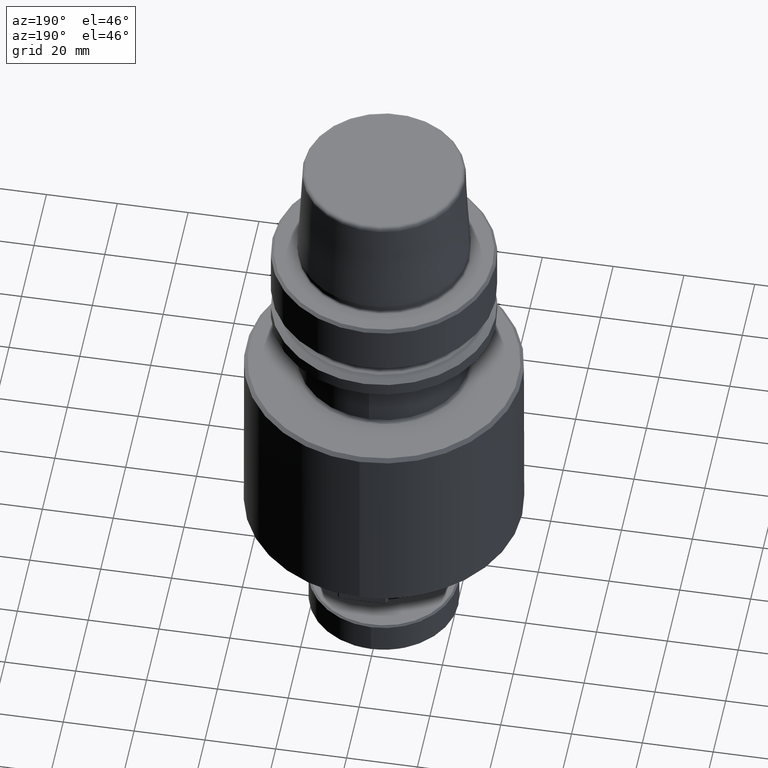
[diagram: clean part render]
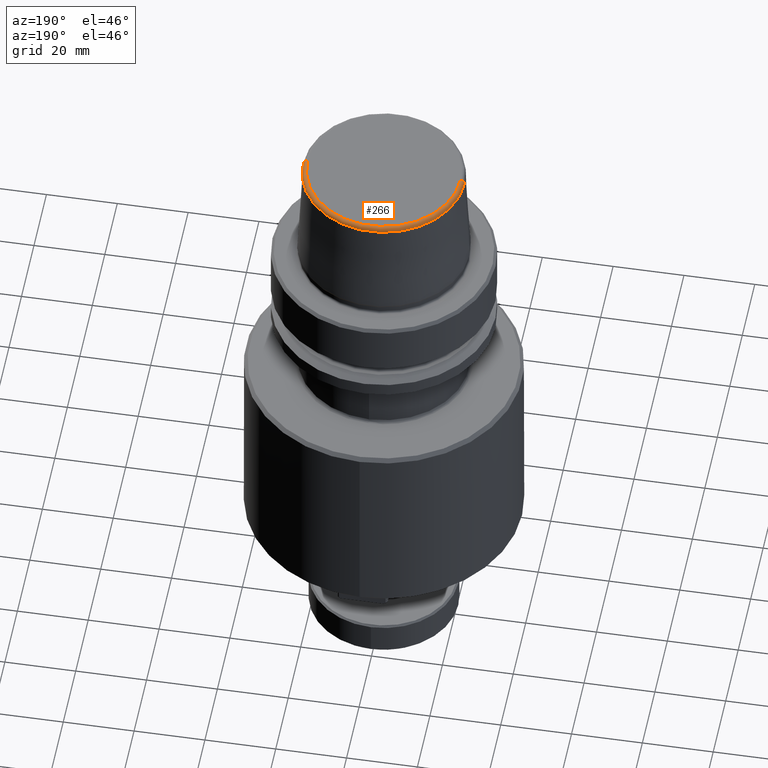
[diagram: same view with one face highlighted and labeled with its STEP entity id]
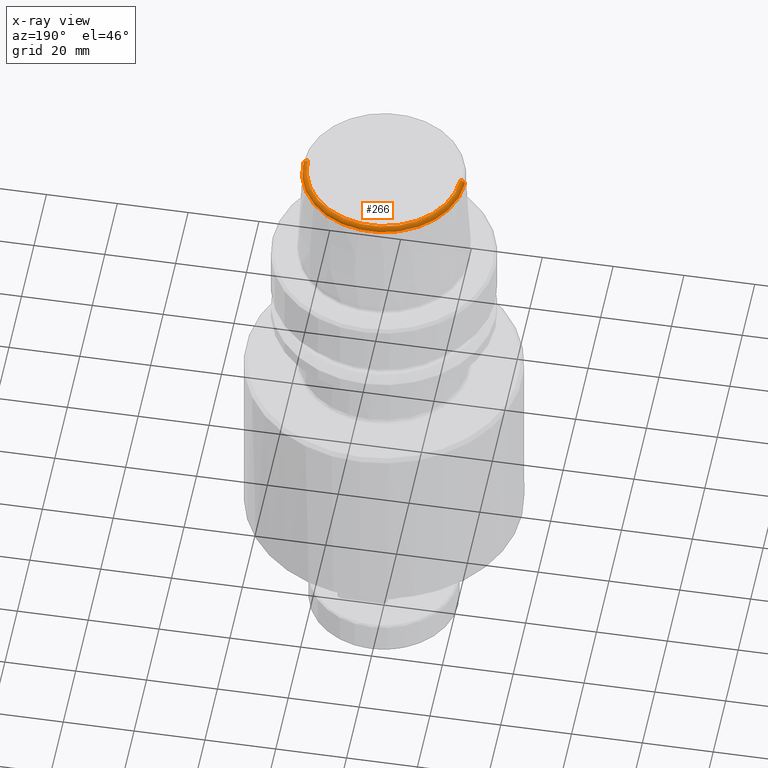
[diagram: x-ray of the same camera — body ghosted, the highlighted face saturated]
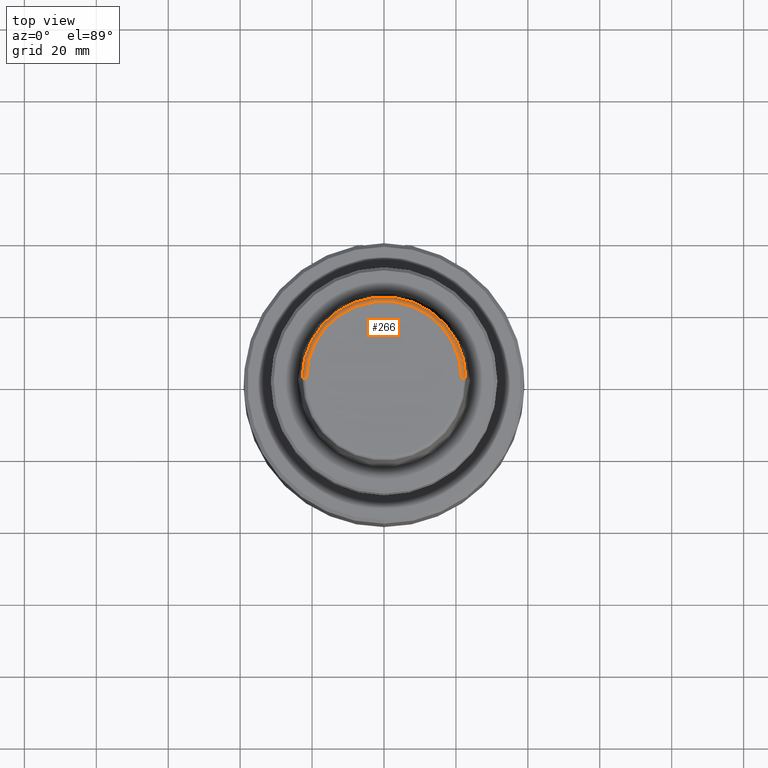
[diagram: same view with one face highlighted and labeled with its STEP entity id]
A machine part, auxiliary view. The second image highlights one B-rep face of the part: STEP entity #266.
The next image is the same camera in x-ray: the body ghosted, the highlighted face saturated — about 0% of this face is hidden behind the body in this view.
A second angle (top view) of the same face is appended — the face is thin or edge-on in the first view.
In plain terms, the highlighted toroidal blend (fillet) surface has major radius 21.5811 mm and minor (blend) radius 1.2 mm.
Its self-contained STEP definition (entity closure, byte-faithful):
#84 = VERTEX_POINT ( 'NONE', #1819 ) ;
#224 = CARTESIAN_POINT ( 'NONE',  ( 21.58105086660056000, 0.0000000000000000000, 30.67653199142017700 ) ) ;
#266 = ADVANCED_FACE ( 'NONE', ( #1717 ), #3351, .T. ) ;
#330 = CARTESIAN_POINT ( 'NONE',  ( -22.77954767978208000, 0.0000000000000000000, 30.73657688124376000 ) ) ;
#373 = EDGE_CURVE ( 'NONE', #971, #84, #3025, .T. ) ;
#482 = DIRECTION ( 'NONE',  ( 0.0000000000000000000, 0.0000000000000000000, -1.000000000000000000 ) ) ;
#487 = CIRCLE ( 'NONE', #2796, 22.77954767978208000 ) ;
#491 = EDGE_CURVE ( 'NONE', #3004, #1569, #487, .T. ) ;
#815 = DIRECTION ( 'NONE',  ( -0.0000000000000000000, -0.0000000000000000000, 1.000000000000000000 ) ) ;
#819 = CARTESIAN_POINT ( 'NONE',  ( 0.0000000000000000000, 0.0000000000000000000, 31.87653199142026500 ) ) ;
#971 = VERTEX_POINT ( 'NONE', #1426 ) ;
#1103 = DIRECTION ( 'NONE',  ( 1.000000000000000000, 0.0000000000000000000, 0.0000000000000000000 ) ) ;
#1153 = CARTESIAN_POINT ( 'NONE',  ( 0.0000000000000000000, 0.0000000000000000000, 30.73657688124376000 ) ) ;
#1271 = CARTESIAN_POINT ( 'NONE',  ( -21.58105086660056000, 2.642916486601858800E-015, 30.67653199142017700 ) ) ;
#1408 = AXIS2_PLACEMENT_3D ( 'NONE', #819, #2681, #1103 ) ;
#1424 = DIRECTION ( 'NONE',  ( 1.000000000000000000, 0.0000000000000000000, 0.0000000000000000000 ) ) ;
#1426 = CARTESIAN_POINT ( 'NONE',  ( 21.58105086660056000, 0.0000000000000000000, 31.87653199142026500 ) ) ;
#1541 = DIRECTION ( 'NONE',  ( -1.000000000000000000, 1.224646799147352000E-016, 0.0000000000000000000 ) ) ;
#1569 = VERTEX_POINT ( 'NONE', #330 ) ;
#1717 = FACE_OUTER_BOUND ( 'NONE', #2000, .T. ) ;
#1819 = CARTESIAN_POINT ( 'NONE',  ( -21.58105086660056000, 2.716303250904411500E-015, 31.87653199142026500 ) ) ;
#1824 = ORIENTED_EDGE ( 'NONE', *, *, #2522, .F. ) ;
#1958 = ORIENTED_EDGE ( 'NONE', *, *, #373, .F. ) ;
#2000 = EDGE_LOOP ( 'NONE', ( #2269, #3419, #1958, #1824 ) ) ;
#2025 = CIRCLE ( 'NONE', #3372, 1.200000000000083000 ) ;
#2097 = DIRECTION ( 'NONE',  ( 0.0000000000000000000, -1.000000000000000000, 0.0000000000000000000 ) ) ;
#2186 = CIRCLE ( 'NONE', #2514, 1.200000000000083000 ) ;
#2269 = ORIENTED_EDGE ( 'NONE', *, *, #491, .T. ) ;
#2467 = EDGE_CURVE ( 'NONE', #1569, #84, #2186, .T. ) ;
#2514 = AXIS2_PLACEMENT_3D ( 'NONE', #1271, #3121, #1541 ) ;
#2522 = EDGE_CURVE ( 'NONE', #3004, #971, #2025, .T. ) ;
#2677 = DIRECTION ( 'NONE',  ( 1.000000000000000000, 0.0000000000000000000, 0.0000000000000000000 ) ) ;
#2681 = DIRECTION ( 'NONE',  ( -0.0000000000000000000, -0.0000000000000000000, 1.000000000000000000 ) ) ;
#2796 = AXIS2_PLACEMENT_3D ( 'NONE', #1153, #3003, #1424 ) ;
#3003 = DIRECTION ( 'NONE',  ( -0.0000000000000000000, -0.0000000000000000000, 1.000000000000000000 ) ) ;
#3004 = VERTEX_POINT ( 'NONE', #3262 ) ;
#3025 = CIRCLE ( 'NONE', #1408, 21.58105086660056000 ) ;
#3057 = AXIS2_PLACEMENT_3D ( 'NONE', #3190, #815, #2677 ) ;
#3121 = DIRECTION ( 'NONE',  ( 1.224646799147353200E-016, 1.000000000000000000, 0.0000000000000000000 ) ) ;
#3190 = CARTESIAN_POINT ( 'NONE',  ( 0.0000000000000000000, 0.0000000000000000000, 30.67653199142017700 ) ) ;
#3262 = CARTESIAN_POINT ( 'NONE',  ( 22.77954767978208000, 2.876381753844058100E-015, 30.73657688124376000 ) ) ;
#3351 = TOROIDAL_SURFACE ( 'NONE', #3057, 21.58105086660056000, 1.200000000000081400 ) ;
#3372 = AXIS2_PLACEMENT_3D ( 'NONE', #224, #2097, #482 ) ;
#3419 = ORIENTED_EDGE ( 'NONE', *, *, #2467, .T. ) ;